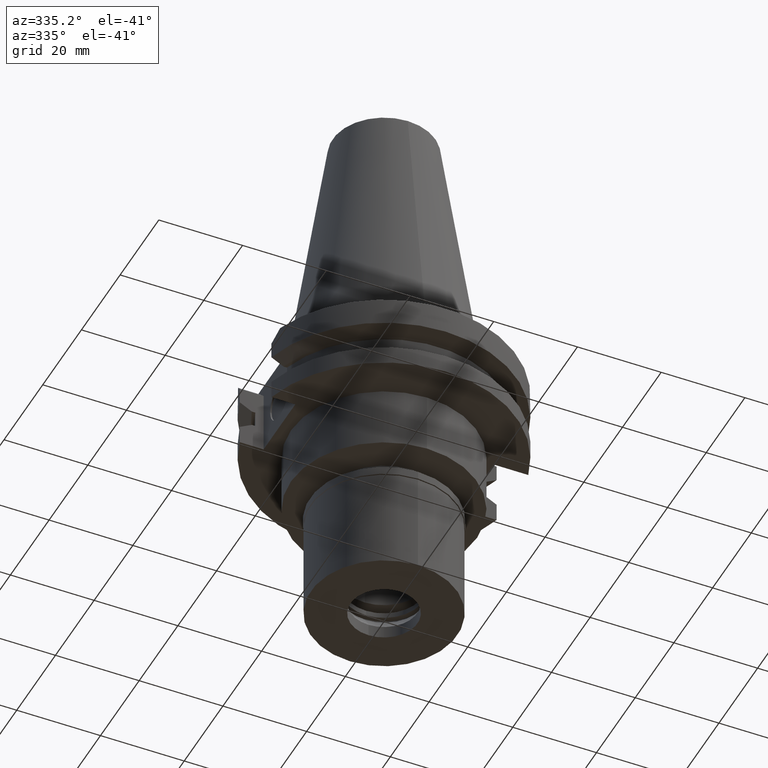
[diagram: clean part render]
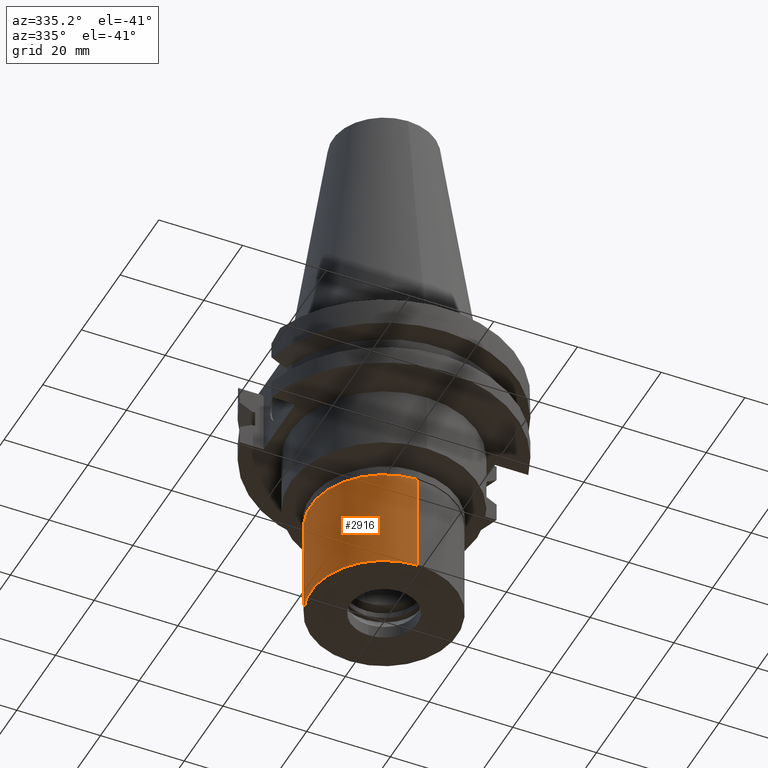
[diagram: same view with one face highlighted and labeled with its STEP entity id]
A machine part, auxiliary view. The second image highlights one B-rep face of the part: STEP entity #2916.
In plain terms, the highlighted cylindrical surface (partial cylindrical patch) has radius 17.5 mm, axis along (0, 0, -1).
Its self-contained STEP definition (entity closure, byte-faithful):
#103 = EDGE_CURVE ( 'NONE', #2688, #2288, #1611, .T. ) ;
#106 = CARTESIAN_POINT ( 'NONE',  ( 0.0000000000000000000, 0.0000000000000000000, -2.100000000000000089 ) ) ;
#187 = CIRCLE ( 'NONE', #902, 17.50000000000000000 ) ;
#298 = CYLINDRICAL_SURFACE ( 'NONE', #2869, 17.50000000000000000 ) ;
#481 = CIRCLE ( 'NONE', #2598, 17.50000000000000000 ) ;
#507 = VERTEX_POINT ( 'NONE', #2666 ) ;
#527 = ORIENTED_EDGE ( 'NONE', *, *, #843, .T. ) ;
#558 = ORIENTED_EDGE ( 'NONE', *, *, #2092, .T. ) ;
#576 = DIRECTION ( 'NONE',  ( 0.0000000000000000000, -1.000000000000000000, 0.0000000000000000000 ) ) ;
#639 = CARTESIAN_POINT ( 'NONE',  ( 0.0000000000000000000, 17.50000000000000000, -2.100000000000000089 ) ) ;
#843 = EDGE_CURVE ( 'NONE', #1043, #2288, #187, .T. ) ;
#902 = AXIS2_PLACEMENT_3D ( 'NONE', #3105, #1443, #2094 ) ;
#1033 = CARTESIAN_POINT ( 'NONE',  ( 0.0000000000000000000, 0.0000000000000000000, 0.0000000000000000000 ) ) ;
#1043 = VERTEX_POINT ( 'NONE', #1704 ) ;
#1183 = CARTESIAN_POINT ( 'NONE',  ( 0.0000000000000000000, -17.50000000000000000, -2.100000000000000089 ) ) ;
#1443 = DIRECTION ( 'NONE',  ( 0.0000000000000000000, 0.0000000000000000000, 1.000000000000000000 ) ) ;
#1544 = VECTOR ( 'NONE', #2639, 1000.000000000000000 ) ;
#1611 = LINE ( 'NONE', #1183, #1900 ) ;
#1662 = DIRECTION ( 'NONE',  ( 0.0000000000000000000, 0.0000000000000000000, -1.000000000000000000 ) ) ;
#1704 = CARTESIAN_POINT ( 'NONE',  ( 0.0000000000000000000, 17.50000000000000000, -26.70000000000000284 ) ) ;
#1781 = DIRECTION ( 'NONE',  ( 0.0000000000000000000, 0.0000000000000000000, -1.000000000000000000 ) ) ;
#1865 = ORIENTED_EDGE ( 'NONE', *, *, #103, .F. ) ;
#1877 = CARTESIAN_POINT ( 'NONE',  ( 0.0000000000000000000, -17.50000000000000000, -26.70000000000000284 ) ) ;
#1900 = VECTOR ( 'NONE', #1662, 1000.000000000000000 ) ;
#2092 = EDGE_CURVE ( 'NONE', #2688, #507, #481, .T. ) ;
#2094 = DIRECTION ( 'NONE',  ( 0.0000000000000000000, 1.000000000000000000, 0.0000000000000000000 ) ) ;
#2200 = EDGE_CURVE ( 'NONE', #507, #1043, #2884, .T. ) ;
#2210 = EDGE_LOOP ( 'NONE', ( #527, #1865, #558, #2530 ) ) ;
#2288 = VERTEX_POINT ( 'NONE', #1877 ) ;
#2462 = FACE_OUTER_BOUND ( 'NONE', #2210, .T. ) ;
#2530 = ORIENTED_EDGE ( 'NONE', *, *, #2200, .T. ) ;
#2598 = AXIS2_PLACEMENT_3D ( 'NONE', #106, #1781, #576 ) ;
#2639 = DIRECTION ( 'NONE',  ( 0.0000000000000000000, 0.0000000000000000000, -1.000000000000000000 ) ) ;
#2666 = CARTESIAN_POINT ( 'NONE',  ( 0.0000000000000000000, 17.50000000000000000, -2.100000000000000089 ) ) ;
#2688 = VERTEX_POINT ( 'NONE', #2877 ) ;
#2714 = DIRECTION ( 'NONE',  ( 0.0000000000000000000, -1.000000000000000000, 0.0000000000000000000 ) ) ;
#2869 = AXIS2_PLACEMENT_3D ( 'NONE', #1033, #2956, #2714 ) ;
#2877 = CARTESIAN_POINT ( 'NONE',  ( 0.0000000000000000000, -17.50000000000000000, -2.100000000000000089 ) ) ;
#2884 = LINE ( 'NONE', #639, #1544 ) ;
#2916 = ADVANCED_FACE ( 'NONE', ( #2462 ), #298, .T. ) ;
#2956 = DIRECTION ( 'NONE',  ( 0.0000000000000000000, 0.0000000000000000000, -1.000000000000000000 ) ) ;
#3105 = CARTESIAN_POINT ( 'NONE',  ( 0.0000000000000000000, 0.0000000000000000000, -26.70000000000000284 ) ) ;